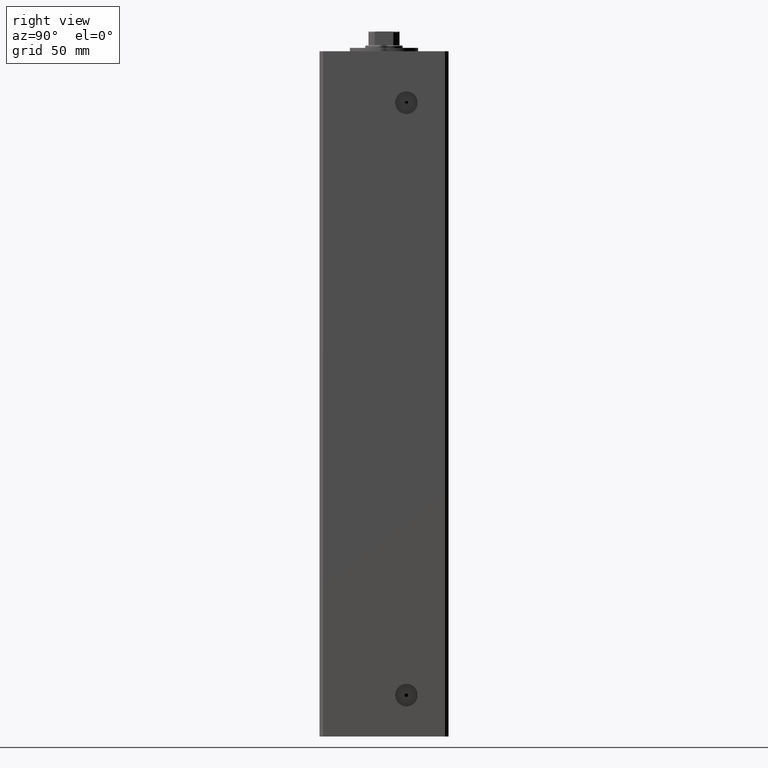
[diagram: clean part render]
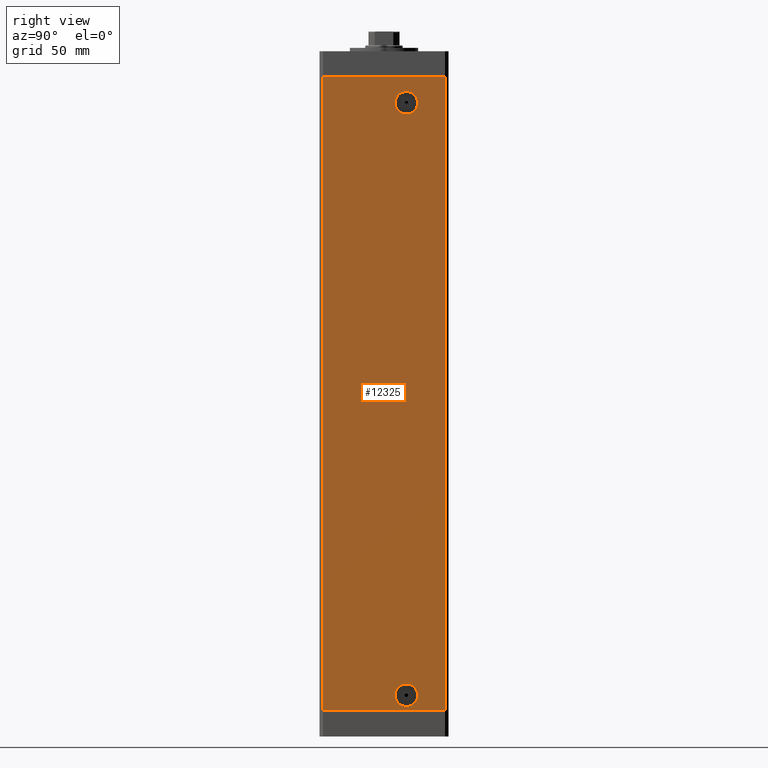
[diagram: same view with one face highlighted and labeled with its STEP entity id]
A machine part, right view. The second image highlights one B-rep face of the part: STEP entity #12325.
In plain terms, the highlighted planar face has unit normal (1, -0, 0).
Its self-contained STEP definition (entity closure, byte-faithful):
#369 = CIRCLE ( 'NONE', #2887, 6.579999999999997407 ) ;
#1960 = VERTEX_POINT ( 'NONE', #9712 ) ;
#2887 = AXIS2_PLACEMENT_3D ( 'NONE', #39627, #15095, #31193 ) ;
#2987 = DIRECTION ( 'NONE',  ( 1.000000000000000000, -2.931927001650941360E-16, 0.000000000000000000 ) ) ;
#3887 = LINE ( 'NONE', #4141, #41617 ) ;
#3960 = EDGE_CURVE ( 'NONE', #43608, #32808, #3887, .T. ) ;
#4090 = AXIS2_PLACEMENT_3D ( 'NONE', #31762, #47839, #8012 ) ;
#4141 = CARTESIAN_POINT ( 'NONE',  ( 42.50000000000000711, 35.50000000000001421, 368.5000000000000000 ) ) ;
#4312 = EDGE_CURVE ( 'NONE', #28319, #1960, #22181, .T. ) ;
#6095 = DIRECTION ( 'NONE',  ( -2.931927001650941360E-16, -1.000000000000000000, 0.000000000000000000 ) ) ;
#6173 = AXIS2_PLACEMENT_3D ( 'NONE', #31471, #2987, #47285 ) ;
#6303 = EDGE_LOOP ( 'NONE', ( #23046, #35843 ) ) ;
#7722 = FACE_OUTER_BOUND ( 'NONE', #25241, .T. ) ;
#8012 = DIRECTION ( 'NONE',  ( 0.000000000000000000, 1.000000000000000000, 0.000000000000000000 ) ) ;
#8292 = CIRCLE ( 'NONE', #4090, 6.579999999999986748 ) ;
#8679 = VERTEX_POINT ( 'NONE', #38125 ) ;
#9712 = CARTESIAN_POINT ( 'NONE',  ( 42.49999999999998579, -35.50000000000000711, 0.000000000000000000 ) ) ;
#11238 = VECTOR ( 'NONE', #6095, 1000.000000000000000 ) ;
#11722 = DIRECTION ( 'NONE',  ( 0.000000000000000000, 1.000000000000000000, 0.000000000000000000 ) ) ;
#12325 = ADVANCED_FACE ( 'NONE', ( #43863, #15646, #7722 ), #44123, .T. ) ;
#13254 = CARTESIAN_POINT ( 'NONE',  ( 42.49999999999999289, 19.57999999999998764, 353.5000000000000000 ) ) ;
#13723 = EDGE_CURVE ( 'NONE', #43608, #28319, #50949, .T. ) ;
#14262 = DIRECTION ( 'NONE',  ( -0.000000000000000000, -0.000000000000000000, -1.000000000000000000 ) ) ;
#14426 = ORIENTED_EDGE ( 'NONE', *, *, #3960, .T. ) ;
#15095 = DIRECTION ( 'NONE',  ( 1.000000000000000000, -2.275047181608927644E-16, 0.000000000000000000 ) ) ;
#15646 = FACE_BOUND ( 'NONE', #6303, .T. ) ;
#16528 = VERTEX_POINT ( 'NONE', #41961 ) ;
#17262 = EDGE_CURVE ( 'NONE', #16528, #8679, #369, .T. ) ;
#17955 = CARTESIAN_POINT ( 'NONE',  ( 42.50000000000000711, 35.50000000000001421, 0.000000000000000000 ) ) ;
#18756 = DIRECTION ( 'NONE',  ( -0.000000000000000000, -0.000000000000000000, -1.000000000000000000 ) ) ;
#19961 = DIRECTION ( 'NONE',  ( -2.931927001650941360E-16, -1.000000000000000000, 0.000000000000000000 ) ) ;
#21266 = VERTEX_POINT ( 'NONE', #46271 ) ;
#22181 = LINE ( 'NONE', #17955, #11238 ) ;
#23046 = ORIENTED_EDGE ( 'NONE', *, *, #26875, .F. ) ;
#23344 = CARTESIAN_POINT ( 'NONE',  ( 42.49999999999999289, 13.00000000000000000, 9.000000000000000000 ) ) ;
#25241 = EDGE_LOOP ( 'NONE', ( #43313, #27282, #14426, #41770 ) ) ;
#26424 = CARTESIAN_POINT ( 'NONE',  ( 42.49999999999999289, 13.00000000000000000, 353.5000000000000000 ) ) ;
#26732 = CIRCLE ( 'NONE', #27552, 6.579999999999986748 ) ;
#26875 = EDGE_CURVE ( 'NONE', #8679, #16528, #31693, .T. ) ;
#27282 = ORIENTED_EDGE ( 'NONE', *, *, #13723, .F. ) ;
#27552 = AXIS2_PLACEMENT_3D ( 'NONE', #26424, #38552, #41741 ) ;
#28319 = VERTEX_POINT ( 'NONE', #28814 ) ;
#28649 = CARTESIAN_POINT ( 'NONE',  ( 42.49999999999998579, -35.50000000000000711, 368.5000000000000000 ) ) ;
#28814 = CARTESIAN_POINT ( 'NONE',  ( 42.50000000000000711, 35.50000000000001421, 0.000000000000000000 ) ) ;
#28854 = ORIENTED_EDGE ( 'NONE', *, *, #29245, .F. ) ;
#29245 = EDGE_CURVE ( 'NONE', #21266, #51511, #26732, .T. ) ;
#30390 = CARTESIAN_POINT ( 'NONE',  ( 42.50000000000000711, 35.50000000000001421, 368.5000000000000000 ) ) ;
#31193 = DIRECTION ( 'NONE',  ( 0.000000000000000000, 1.000000000000000000, 0.000000000000000000 ) ) ;
#31471 = CARTESIAN_POINT ( 'NONE',  ( 42.50000000000000711, 35.50000000000001421, 368.5000000000000000 ) ) ;
#31522 = DIRECTION ( 'NONE',  ( 1.000000000000000000, -2.275047181608927644E-16, 0.000000000000000000 ) ) ;
#31693 = CIRCLE ( 'NONE', #32522, 6.579999999999997407 ) ;
#31762 = CARTESIAN_POINT ( 'NONE',  ( 42.49999999999999289, 13.00000000000000000, 353.5000000000000000 ) ) ;
#32461 = EDGE_LOOP ( 'NONE', ( #35564, #28854 ) ) ;
#32522 = AXIS2_PLACEMENT_3D ( 'NONE', #23344, #31522, #11722 ) ;
#32808 = VERTEX_POINT ( 'NONE', #28649 ) ;
#33257 = EDGE_CURVE ( 'NONE', #51511, #21266, #8292, .T. ) ;
#35564 = ORIENTED_EDGE ( 'NONE', *, *, #33257, .F. ) ;
#35843 = ORIENTED_EDGE ( 'NONE', *, *, #17262, .F. ) ;
#37614 = EDGE_CURVE ( 'NONE', #32808, #1960, #42222, .T. ) ;
#38125 = CARTESIAN_POINT ( 'NONE',  ( 42.49999999999999289, 19.57999999999999829, 9.000000000000000000 ) ) ;
#38268 = CARTESIAN_POINT ( 'NONE',  ( 42.49999999999998579, -35.50000000000000711, 368.5000000000000000 ) ) ;
#38552 = DIRECTION ( 'NONE',  ( 1.000000000000000000, -2.275047181608927644E-16, 0.000000000000000000 ) ) ;
#39627 = CARTESIAN_POINT ( 'NONE',  ( 42.49999999999999289, 13.00000000000000000, 9.000000000000000000 ) ) ;
#41617 = VECTOR ( 'NONE', #19961, 1000.000000000000000 ) ;
#41741 = DIRECTION ( 'NONE',  ( 0.000000000000000000, 1.000000000000000000, 0.000000000000000000 ) ) ;
#41770 = ORIENTED_EDGE ( 'NONE', *, *, #37614, .T. ) ;
#41961 = CARTESIAN_POINT ( 'NONE',  ( 42.49999999999999289, 6.420000000000000817, 9.000000000000000000 ) ) ;
#42222 = LINE ( 'NONE', #38268, #49687 ) ;
#43246 = VECTOR ( 'NONE', #18756, 1000.000000000000000 ) ;
#43313 = ORIENTED_EDGE ( 'NONE', *, *, #4312, .F. ) ;
#43608 = VERTEX_POINT ( 'NONE', #47075 ) ;
#43863 = FACE_BOUND ( 'NONE', #32461, .T. ) ;
#44123 = PLANE ( 'NONE',  #6173 ) ;
#46271 = CARTESIAN_POINT ( 'NONE',  ( 42.49999999999999289, 6.420000000000013252, 353.5000000000000000 ) ) ;
#47075 = CARTESIAN_POINT ( 'NONE',  ( 42.50000000000000711, 35.50000000000001421, 368.5000000000000000 ) ) ;
#47285 = DIRECTION ( 'NONE',  ( 2.931927001650941360E-16, 1.000000000000000000, 0.000000000000000000 ) ) ;
#47839 = DIRECTION ( 'NONE',  ( 1.000000000000000000, -2.275047181608927644E-16, 0.000000000000000000 ) ) ;
#49687 = VECTOR ( 'NONE', #14262, 1000.000000000000000 ) ;
#50949 = LINE ( 'NONE', #30390, #43246 ) ;
#51511 = VERTEX_POINT ( 'NONE', #13254 ) ;